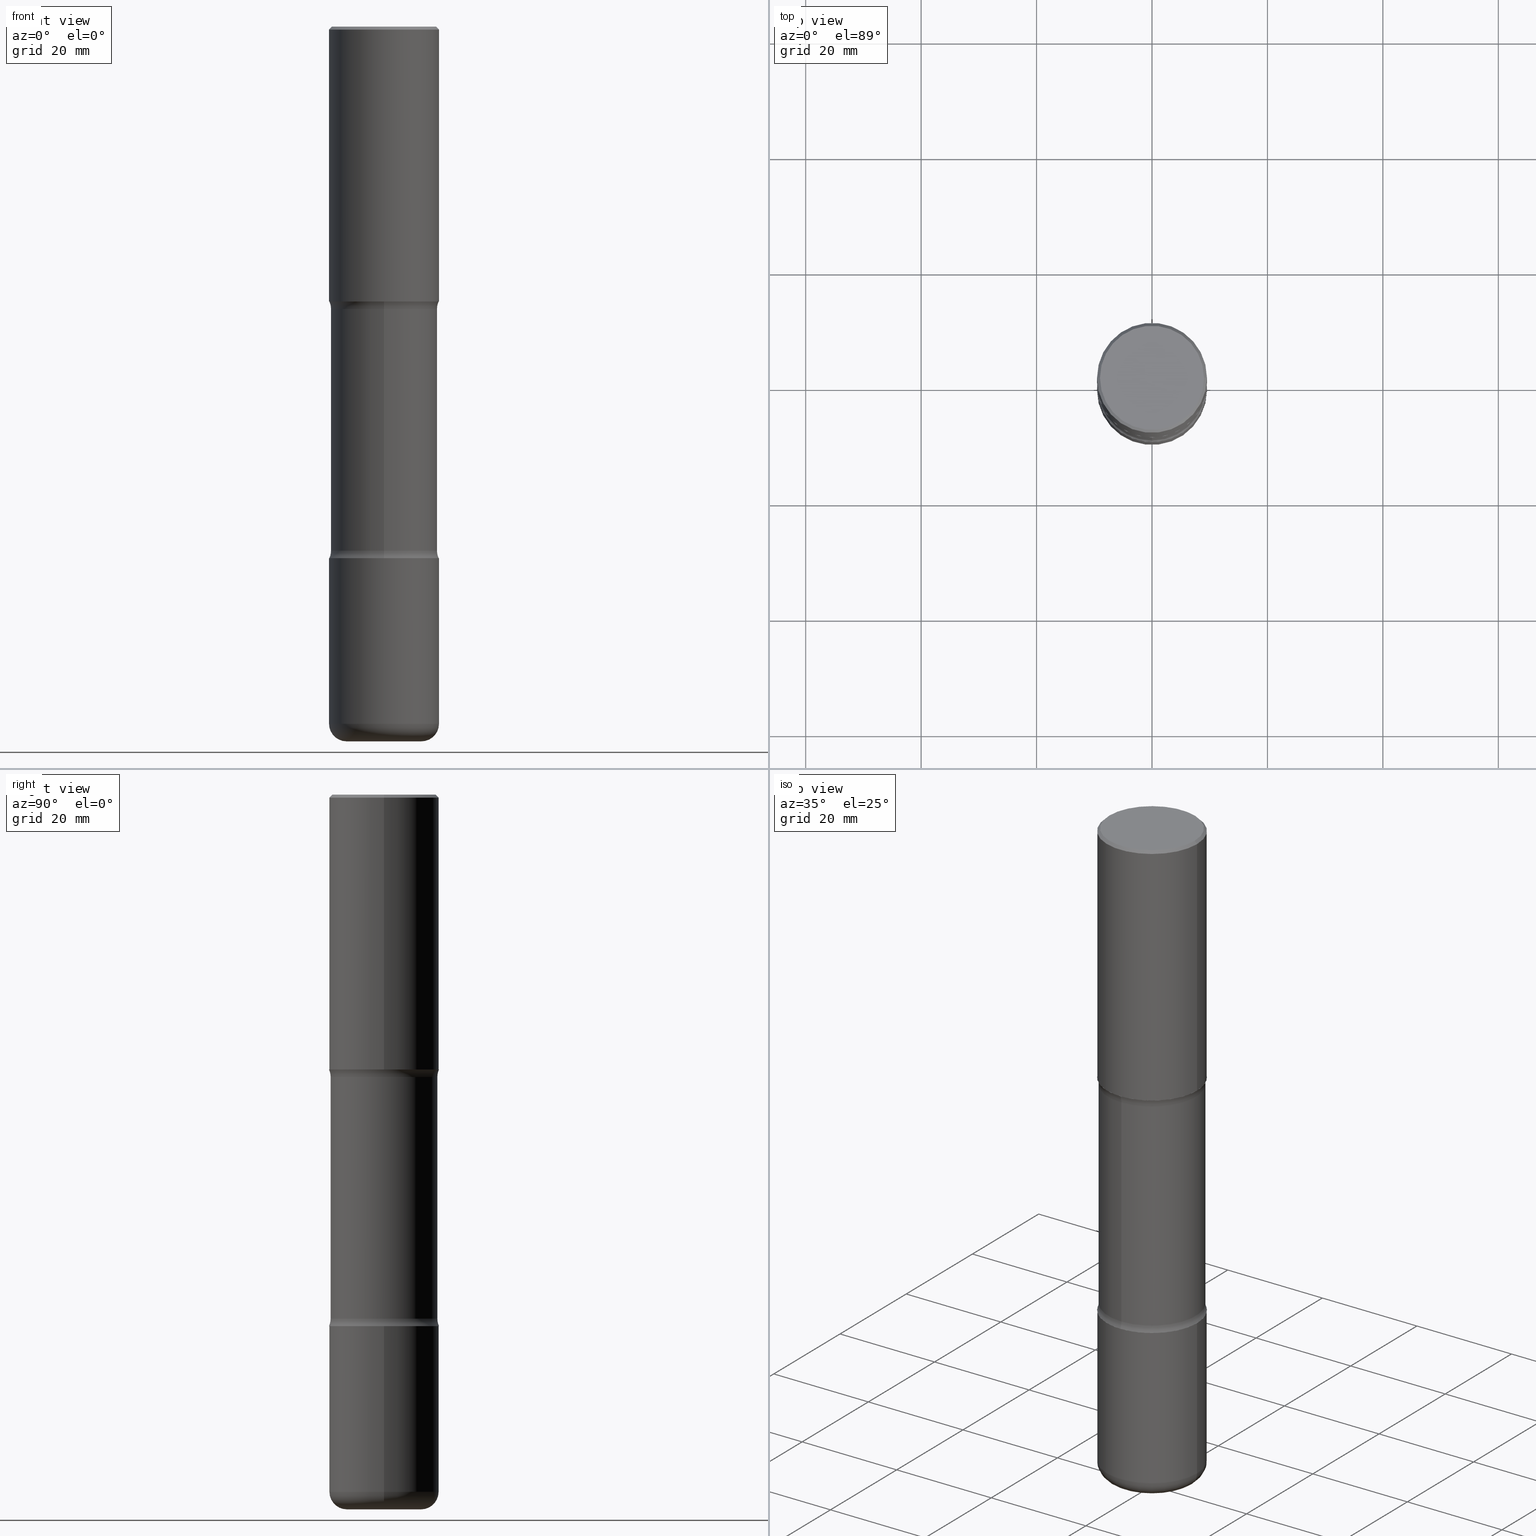
[diagram: canonical four-view strip — front | top / right | iso, engineering-drawing reading convention]
A machine part, canonical four-view strip (front | top / right | iso — engineering-drawing reading convention). The complete STEP part file that produces these views, byte-faithful:
ISO-10303-21;
HEADER;
FILE_DESCRIPTION (( 'STEP AP203' ),
    '1' );
FILE_NAME ('34007.STEP',
    '2024-03-01T22:53:26',
    ( '' ),
    ( '' ),
    'SwSTEP 2.0',
    'SolidWorks 2023',
    '' );
FILE_SCHEMA (( 'CONFIG_CONTROL_DESIGN' ));
ENDSEC;

DATA;
#1 = ORIENTED_EDGE ( 'NONE', *, *, #447, .F. ) ;
#2 = LINE ( 'NONE', #296, #242 ) ;
#3 = AXIS2_PLACEMENT_3D ( 'NONE', #24, #367, #473 ) ;
#4 = CARTESIAN_POINT ( 'NONE',  ( -2.572686749164237167E-15, -0.3750000000000128786, -3.624999999999999112 ) ) ;
#5 = DIRECTION ( 'NONE',  ( -2.445468806185136597E-29, 3.491481338843145583E-15, 1.000000000000000000 ) ) ;
#6 = DIRECTION ( 'NONE',  ( 1.000000000000000000, -6.982962677686266711E-15, 4.876231632511983138E-29 ) ) ;
#7 = VERTEX_POINT ( 'NONE', #38 ) ;
#8 =( LENGTH_UNIT ( ) NAMED_UNIT ( * ) SI_UNIT ( $, .METRE. ) );
#9 = PERSON_AND_ORGANIZATION_ROLE ( 'design_owner' ) ;
#10 = AXIS2_PLACEMENT_3D ( 'NONE', #319, #103, #356 ) ;
#11 = PLANE ( 'NONE',  #480 ) ;
#12 = PERSON_AND_ORGANIZATION ( #533, #261 ) ;
#13 = DIRECTION ( 'NONE',  ( -2.445468806185136597E-29, 3.491481338843145583E-15, 1.000000000000000000 ) ) ;
#14 = CIRCLE ( 'NONE', #184, 0.1199999999999999539 ) ;
#15 = ADVANCED_FACE ( 'NONE', ( #179 ), #383, .T. ) ;
#16 = CARTESIAN_POINT ( 'NONE',  ( 8.864824422421121284E-29, -1.265661985330640417E-14, -3.625000000000000444 ) ) ;
#17 = APPROVAL_DATE_TIME ( #458, #535 ) ;
#18 = CARTESIAN_POINT ( 'NONE',  ( 8.864824422421121284E-29, -1.265661985330640417E-14, -3.625000000000000444 ) ) ;
#19 = ORIENTED_EDGE ( 'NONE', *, *, #519, .T. ) ;
#20 = PERSON_AND_ORGANIZATION ( #533, #261 ) ;
#21 = SECURITY_CLASSIFICATION ( '', '', #108 ) ;
#22 = FACE_OUTER_BOUND ( 'NONE', #558, .T. ) ;
#23 = EDGE_LOOP ( 'NONE', ( #113, #255 ) ) ;
#24 = CARTESIAN_POINT ( 'NONE',  ( 1.162820417341032685E-28, -1.660199376619916000E-14, -4.755000000000000782 ) ) ;
#25 = ORIENTED_EDGE ( 'NONE', *, *, #133, .T. ) ;
#26 = AXIS2_PLACEMENT_3D ( 'NONE', #496, #64, #52 ) ;
#27 = MANIFOLD_SOLID_BREP ( 'Body-Move/Copy2[2]', #304 ) ;
#28 = CARTESIAN_POINT ( 'NONE',  ( 0.000000000000000000, 0.000000000000000000, 0.000000000000000000 ) ) ;
#29 = AXIS2_PLACEMENT_3D ( 'NONE', #477, #5, #430 ) ;
#30 = FACE_OUTER_BOUND ( 'NONE', #466, .T. ) ;
#31 = CARTESIAN_POINT ( 'NONE',  ( 3.414668749388672001E-15, 0.4889999999999876112, -3.573726225026824466 ) ) ;
#32 = MANIFOLD_SOLID_BREP ( 'Body-Move/Copy2[4]', #92 ) ;
#33 = EDGE_CURVE ( 'NONE', #107, #288, #521, .T. ) ;
#34 = DIRECTION ( 'NONE',  ( -1.000000000000000000, 6.982962677686266711E-15, 0.000000000000000000 ) ) ;
#35 = AXIS2_PLACEMENT_3D ( 'NONE', #28, #452, #245 ) ;
#36 = ORIENTED_EDGE ( 'NONE', *, *, #74, .T. ) ;
#37 = CARTESIAN_POINT ( 'NONE',  ( 1.196935141160471570E-28, -1.695267532701872981E-14, -4.875000000000000000 ) ) ;
#38 = CARTESIAN_POINT ( 'NONE',  ( -2.572686749164284893E-15, -0.3750000000000073830, -1.874999999999998668 ) ) ;
#39 = APPROVAL_PERSON_ORGANIZATION ( #481, #272, #439 ) ;
#40 = FACE_OUTER_BOUND ( 'NONE', #346, .T. ) ;
#41 = CARTESIAN_POINT ( 'NONE',  ( -2.534954010176537181E-15, -0.3640000000000067626, -1.926273774973176645 ) ) ;
#42 = VERTEX_POINT ( 'NONE', #428 ) ;
#43 = CARTESIAN_POINT ( 'NONE',  ( 4.585254011597131119E-29, -6.546527510330898707E-15, -1.875000000000000000 ) ) ;
#44 = VERTEX_POINT ( 'NONE', #307 ) ;
#45 = FACE_OUTER_BOUND ( 'NONE', #246, .T. ) ;
#46 = EDGE_CURVE ( 'NONE', #200, #453, #379, .T. ) ;
#47 = PRODUCT_DEFINITION_SHAPE ( 'NONE', 'NONE',  #350 ) ;
#48 = ADVANCED_FACE ( 'NONE', ( #210 ), #417, .F. ) ;
#49 = DIRECTION ( 'NONE',  ( -6.982962677686264344E-15, -1.000000000000000000, 0.000000000000000000 ) ) ;
#50 = AXIS2_PLACEMENT_3D ( 'NONE', #167, #287, #253 ) ;
#51 = EDGE_CURVE ( 'NONE', #44, #376, #482, .T. ) ;
#52 = DIRECTION ( 'NONE',  ( 6.982962677686265922E-15, 1.000000000000000000, -3.436844378969860121E-15 ) ) ;
#53 = AXIS2_PLACEMENT_3D ( 'NONE', #221, #380, #176 ) ;
#54 = CARTESIAN_POINT ( 'NONE',  ( 0.3750000000000004996, -2.642516375941190790E-15, -0.02000000000000013572 ) ) ;
#55 = ADVANCED_FACE ( 'NONE', ( #258 ), #301, .T. ) ;
#56 = CARTESIAN_POINT ( 'NONE',  ( 8.864824422421121284E-29, -1.265661985330640417E-14, -3.625000000000000444 ) ) ;
#57 = CIRCLE ( 'NONE', #131, 0.3639999999999999902 ) ;
#58 = DIRECTION ( 'NONE',  ( -2.445468806185136597E-29, 3.491481338843145583E-15, 1.000000000000000000 ) ) ;
#59 = ORIENTED_EDGE ( 'NONE', *, *, #352, .F. ) ;
#60 = DIRECTION ( 'NONE',  ( 1.000000000000000000, -6.982962677686263555E-15, 0.000000000000000000 ) ) ;
#61 = EDGE_LOOP ( 'NONE', ( #405, #548, #154, #66 ) ) ;
#62 = CIRCLE ( 'NONE', #471, 0.1250000000000001110 ) ;
#63 = AXIS2_PLACEMENT_3D ( 'NONE', #82, #474, #262 ) ;
#64 = DIRECTION ( 'NONE',  ( 2.483621591346876038E-29, -3.436844378969860121E-15, -1.000000000000000000 ) ) ;
#65 = CARTESIAN_POINT ( 'NONE',  ( 2.541798414677888268E-15, 0.3639999999999875002, -3.573726225026824022 ) ) ;
#66 = ORIENTED_EDGE ( 'NONE', *, *, #415, .F. ) ;
#67 = EDGE_CURVE ( 'NONE', #180, #288, #2, .T. ) ;
#68 = PERSON_AND_ORGANIZATION_ROLE ( 'design_supplier' ) ;
#69 = CARTESIAN_POINT ( 'NONE',  ( 0.2550000000000008926, -1.880162700967033970E-14, -4.875000000000000000 ) ) ;
#70 = ORIENTED_EDGE ( 'NONE', *, *, #316, .T. ) ;
#71 = CC_DESIGN_DATE_AND_TIME_ASSIGNMENT ( #400, #195, ( #21 ) ) ;
#72 = DIRECTION ( 'NONE',  ( 2.483621591346876038E-29, -3.436844378969860121E-15, -1.000000000000000000 ) ) ;
#73 = DIRECTION ( 'NONE',  ( -0.7071067811865475727, 2.468850131082257455E-15, -0.7071067811865474617 ) ) ;
#74 = EDGE_CURVE ( 'NONE', #365, #42, #164, .T. ) ;
#75 = CARTESIAN_POINT ( 'NONE',  ( 4.585254011597131119E-29, -6.546527510330898707E-15, -1.875000000000000000 ) ) ;
#76 = DIRECTION ( 'NONE',  ( -2.445468806185136597E-29, 3.491481338843145583E-15, 1.000000000000000000 ) ) ;
#77 = ORIENTED_EDGE ( 'NONE', *, *, #74, .F. ) ;
#78 = DIRECTION ( 'NONE',  ( 1.000000000000000000, -6.982962677686266711E-15, 0.000000000000000000 ) ) ;
#79 = CIRCLE ( 'NONE', #343, 0.3750000000000008327 ) ;
#80 = ORIENTED_EDGE ( 'NONE', *, *, #557, .F. ) ;
#81 = CARTESIAN_POINT ( 'NONE',  ( 3.131554243005659264E-46, -4.471029511141341874E-32, -1.280553747030123384E-17 ) ) ;
#82 = CARTESIAN_POINT ( 'NONE',  ( 4.890937612370306439E-31, -6.982962677686338448E-17, -0.02000000000000013572 ) ) ;
#83 = CC_DESIGN_APPROVAL ( #272, ( #350 ) ) ;
#84 = CARTESIAN_POINT ( 'NONE',  ( 4.645831292157334029E-29, -6.818362175414279204E-15, -1.926273774973178199 ) ) ;
#85 = EDGE_LOOP ( 'NONE', ( #305, #544 ) ) ;
#86 = CIRCLE ( 'NONE', #446, 0.3750000000000007772 ) ;
#87 = DIRECTION ( 'NONE',  ( -1.000000000000000000, 6.982962677686265922E-15, -4.883557194083112340E-29 ) ) ;
#88 = ORIENTED_EDGE ( 'NONE', *, *, #198, .T. ) ;
#89 = EDGE_CURVE ( 'NONE', #295, #107, #337, .T. ) ;
#90 = PRODUCT ( '34007', '34007', '', ( #232 ) ) ;
#91 = CIRCLE ( 'NONE', #378, 0.3550000000000003708 ) ;
#92 = CLOSED_SHELL ( 'NONE', ( #530, #539, #327, #182, #48, #220, #467, #122 ) ) ;
#93 = PLANE ( 'NONE',  #125 ) ;
#94 = DIMENSIONAL_EXPONENTS ( 1.000000000000000000, 0.000000000000000000, 0.000000000000000000, 0.000000000000000000, 0.000000000000000000, 0.000000000000000000, 0.000000000000000000 ) ;
#95 = ORIENTED_EDGE ( 'NONE', *, *, #46, .F. ) ;
#96 = CARTESIAN_POINT ( 'NONE',  ( 0.000000000000000000, 0.000000000000000000, 0.000000000000000000 ) ) ;
#97 = CIRCLE ( 'NONE', #555, 0.3639999999999999347 ) ;
#98 = VERTEX_POINT ( 'NONE', #124 ) ;
#99 = CARTESIAN_POINT ( 'NONE',  ( -0.3550000000000003708, 2.513866563967058619E-15, -1.280553747031869201E-17 ) ) ;
#100 = DIRECTION ( 'NONE',  ( 1.000000000000000000, -6.982962677686269077E-15, 0.000000000000000000 ) ) ;
#101 = ORIENTED_EDGE ( 'NONE', *, *, #554, .F. ) ;
#102 = DATE_TIME_ROLE ( 'creation_date' ) ;
#103 = DIRECTION ( 'NONE',  ( -2.483621591346875758E-29, 3.436844378969860121E-15, 1.000000000000000000 ) ) ;
#104 = ORIENTED_EDGE ( 'NONE', *, *, #198, .F. ) ;
#105 = AXIS2_PLACEMENT_3D ( 'NONE', #284, #239, #489 ) ;
#106 = DIRECTION ( 'NONE',  ( -2.445468806185136597E-29, 3.491481338843145583E-15, 1.000000000000000000 ) ) ;
#107 = VERTEX_POINT ( 'NONE', #464 ) ;
#108 = SECURITY_CLASSIFICATION_LEVEL ( 'unclassified' ) ;
#109 = UNCERTAINTY_MEASURE_WITH_UNIT (LENGTH_MEASURE( 1.000000000000000082E-05 ), #522, 'distance_accuracy_value', 'NONE');
#110 = EDGE_CURVE ( 'NONE', #393, #494, #348, .T. ) ;
#111 = DIRECTION ( 'NONE',  ( 2.483621591346876038E-29, -3.436844378969860121E-15, -1.000000000000000000 ) ) ;
#112 = DIRECTION ( 'NONE',  ( 2.483621591346876318E-29, -3.436844378969860121E-15, -1.000000000000000000 ) ) ;
#113 = ORIENTED_EDGE ( 'NONE', *, *, #322, .F. ) ;
#114 = COORDINATED_UNIVERSAL_TIME_OFFSET ( 5, 0, .BEHIND. ) ;
#115 = AXIS2_PLACEMENT_3D ( 'NONE', #497, #72, #427 ) ;
#116 = CARTESIAN_POINT ( 'NONE',  ( -2.497221271188717288E-15, -0.3640000000000169211, -4.874999999999999112 ) ) ;
#117 = ORIENTED_EDGE ( 'NONE', *, *, #51, .F. ) ;
#118 = CC_DESIGN_DATE_AND_TIME_ASSIGNMENT ( #119, #102, ( #350 ) ) ;
#119 = DATE_AND_TIME ( #491, #172 ) ;
#120 = LINE ( 'NONE', #290, #374 ) ;
#121 = CARTESIAN_POINT ( 'NONE',  ( -0.3750000000000004996, 2.548781377355490268E-15, -0.02000000000000013572 ) ) ;
#122 = ADVANCED_FACE ( 'NONE', ( #40 ), #553, .T. ) ;
#123 = CARTESIAN_POINT ( 'NONE',  ( 1.162820417341032685E-28, -1.660199376619916000E-14, -4.755000000000000782 ) ) ;
#124 = CARTESIAN_POINT ( 'NONE',  ( 0.3750000000000002220, -1.527523085743875418E-14, -3.625000000000000444 ) ) ;
#125 = AXIS2_PLACEMENT_3D ( 'NONE', #532, #306, #476 ) ;
#126 = ORIENTED_EDGE ( 'NONE', *, *, #352, .T. ) ;
#127 = VECTOR ( 'NONE', #333, 39.37007874015748143 ) ;
#128 = CARTESIAN_POINT ( 'NONE',  ( 0.000000000000000000, 0.000000000000000000, 0.000000000000000000 ) ) ;
#129 = ORIENTED_EDGE ( 'NONE', *, *, #426, .T. ) ;
#130 = CARTESIAN_POINT ( 'NONE',  ( 0.2550000000000008926, -1.838264924900916306E-14, -4.755000000000000782 ) ) ;
#131 = AXIS2_PLACEMENT_3D ( 'NONE', #551, #222, #371 ) ;
#132 = ORIENTED_EDGE ( 'NONE', *, *, #228, .T. ) ;
#133 = EDGE_CURVE ( 'NONE', #288, #107, #436, .T. ) ;
#134 = LINE ( 'NONE', #303, #399 ) ;
#135 = EDGE_LOOP ( 'NONE', ( #173, #147 ) ) ;
#136 = AXIS2_PLACEMENT_3D ( 'NONE', #96, #524, #355 ) ;
#137 = AXIS2_PLACEMENT_3D ( 'NONE', #299, #468, #291 ) ;
#138 = ADVANCED_FACE ( 'NONE', ( #422 ), #252, .T. ) ;
#139 = ORIENTED_EDGE ( 'NONE', *, *, #519, .F. ) ;
#140 = TOROIDAL_SURFACE ( 'NONE', #390, 0.4890000000000001568, 0.1250000000000001110 ) ;
#141 = ADVANCED_FACE ( 'NONE', ( #377 ), #275, .T. ) ;
#142 = CARTESIAN_POINT ( 'NONE',  ( 3.414668749388631769E-15, 0.4889999999999933844, -1.926273774973180197 ) ) ;
#143 = AXIS2_PLACEMENT_3D ( 'NONE', #392, #309, #273 ) ;
#144 = EDGE_LOOP ( 'NONE', ( #297, #129, #487, #162 ) ) ;
#145 = AXIS2_PLACEMENT_3D ( 'NONE', #37, #254, #169 ) ;
#146 = FACE_OUTER_BOUND ( 'NONE', #61, .T. ) ;
#147 = ORIENTED_EDGE ( 'NONE', *, *, #311, .T. ) ;
#148 = SHAPE_DEFINITION_REPRESENTATION ( #47, #504 ) ;
#149 = DIRECTION ( 'NONE',  ( 1.000000000000000000, -6.982962677686265922E-15, 4.876176775795936353E-29 ) ) ;
#150 = EDGE_LOOP ( 'NONE', ( #132, #361 ) ) ;
#151 = EDGE_CURVE ( 'NONE', #42, #376, #454, .T. ) ;
#152 = CALENDAR_DATE ( 2024, 1, 3 ) ;
#153 = CARTESIAN_POINT ( 'NONE',  ( 0.3750000000000009437, -1.922060477033151633E-14, -4.755000000000000782 ) ) ;
#154 = ORIENTED_EDGE ( 'NONE', *, *, #277, .T. ) ;
#155 = EDGE_CURVE ( 'NONE', #523, #402, #433, .T. ) ;
#156 = AXIS2_PLACEMENT_3D ( 'NONE', #18, #111, #196 ) ;
#157 = CARTESIAN_POINT ( 'NONE',  ( 4.518486637564087307E-29, -6.642142190109148265E-15, -1.875000000000000000 ) ) ;
#158 = EDGE_LOOP ( 'NONE', ( #325, #538 ) ) ;
#159 = DATE_AND_TIME ( #152, #330 ) ;
#160 = EDGE_CURVE ( 'NONE', #329, #200, #478, .T. ) ;
#161 = CARTESIAN_POINT ( 'NONE',  ( 2.541798414677846852E-15, 0.3639999999999931068, -1.926273774973179531 ) ) ;
#162 = ORIENTED_EDGE ( 'NONE', *, *, #492, .F. ) ;
#163 = CALENDAR_DATE ( 2024, 1, 3 ) ;
#164 = CIRCLE ( 'NONE', #137, 0.1250000000000000278 ) ;
#165 = DIRECTION ( 'NONE',  ( 1.000000000000000000, -6.982962677686265922E-15, 4.876176775795935793E-29 ) ) ;
#166 = EDGE_CURVE ( 'NONE', #523, #107, #516, .T. ) ;
#167 = CARTESIAN_POINT ( 'NONE',  ( 8.864824422421121284E-29, -1.265661985330640417E-14, -3.625000000000000444 ) ) ;
#168 = CIRCLE ( 'NONE', #191, 0.2550000000000008926 ) ;
#169 = DIRECTION ( 'NONE',  ( 6.982962677686265922E-15, 1.000000000000000000, -3.002030762268421058E-15 ) ) ;
#170 = DIRECTION ( 'NONE',  ( -2.445468806185136877E-29, 3.491481338843145188E-15, 1.000000000000000000 ) ) ;
#171 = PRODUCT_RELATED_PRODUCT_CATEGORY ( 'detail', '', ( #90 ) ) ;
#172 = LOCAL_TIME ( 17, 53, 26.00000000000000000, #443 ) ;
#173 = ORIENTED_EDGE ( 'NONE', *, *, #554, .T. ) ;
#174 = DIRECTION ( 'NONE',  ( -1.000000000000000000, 6.982962677686265922E-15, -4.883557194083112340E-29 ) ) ;
#175 = ADVANCED_FACE ( 'NONE', ( #408 ), #364, .F. ) ;
#176 = DIRECTION ( 'NONE',  ( 1.000000000000000000, -6.982962677686265922E-15, 4.876176775795936353E-29 ) ) ;
#177 = DIRECTION ( 'NONE',  ( 2.483621591346876038E-29, -3.436844378969860121E-15, -1.000000000000000000 ) ) ;
#178 = CIRCLE ( 'NONE', #308, 0.3750000000000007772 ) ;
#179 = FACE_OUTER_BOUND ( 'NONE', #386, .T. ) ;
#180 = VERTEX_POINT ( 'NONE', #189 ) ;
#181 = AXIS2_PLACEMENT_3D ( 'NONE', #31, #174, #218 ) ;
#182 = ADVANCED_FACE ( 'NONE', ( #22 ), #256, .F. ) ;
#183 = LENGTH_MEASURE_WITH_UNIT ( LENGTH_MEASURE( 0.02539999999999999897 ), #8 );
#184 = AXIS2_PLACEMENT_3D ( 'NONE', #233, #244, #398 ) ;
#185 = DIRECTION ( 'NONE',  ( 0.7071067811865475727, -7.319954787623256045E-15, -0.7071067811865474617 ) ) ;
#186 = DIRECTION ( 'NONE',  ( 6.982962677686266711E-15, 1.000000000000000000, -2.913971193241879189E-15 ) ) ;
#187 = APPLICATION_CONTEXT ( 'configuration controlled 3d designs of mechanical parts and assemblies' ) ;
#188 = CIRCLE ( 'NONE', #450, 0.3750000000000009992 ) ;
#189 = CARTESIAN_POINT ( 'NONE',  ( 0.3750000000000007772, -9.165138514463255034E-15, -1.875000000000000000 ) ) ;
#190 = ORIENTED_EDGE ( 'NONE', *, *, #432, .T. ) ;
#191 = AXIS2_PLACEMENT_3D ( 'NONE', #444, #58, #237 ) ;
#192 = DIRECTION ( 'NONE',  ( -2.445468806185136877E-29, 3.491481338843145188E-15, 1.000000000000000000 ) ) ;
#193 = ORIENTED_EDGE ( 'NONE', *, *, #110, .T. ) ;
#194 = CC_DESIGN_PERSON_AND_ORGANIZATION_ASSIGNMENT ( #289, #549, ( #21 ) ) ;
#195 = DATE_TIME_ROLE ( 'classification_date' ) ;
#196 = DIRECTION ( 'NONE',  ( 6.982962677686266711E-15, 1.000000000000000000, -2.913971193241879189E-15 ) ) ;
#197 = ORIENTED_EDGE ( 'NONE', *, *, #160, .F. ) ;
#198 = EDGE_CURVE ( 'NONE', #180, #295, #178, .T. ) ;
#199 = DIRECTION ( 'NONE',  ( 2.483621591346876038E-29, -3.436844378969860121E-15, -1.000000000000000000 ) ) ;
#200 = VERTEX_POINT ( 'NONE', #153 ) ;
#201 = CALENDAR_DATE ( 2024, 1, 3 ) ;
#202 = AXIS2_PLACEMENT_3D ( 'NONE', #56, #360, #493 ) ;
#203 = CARTESIAN_POINT ( 'NONE',  ( 2.618611004132400109E-15, 0.3749999999999942268, -1.875000000000001554 ) ) ;
#204 = EDGE_LOOP ( 'NONE', ( #104, #421 ) ) ;
#205 = DIRECTION ( 'NONE',  ( 1.000000000000000000, -6.982962677686266711E-15, 0.000000000000000000 ) ) ;
#206 = PRODUCT_DEFINITION_FORMATION_WITH_SPECIFIED_SOURCE ( 'ANY', '', #90, .NOT_KNOWN. ) ;
#207 = CLOSED_SHELL ( 'NONE', ( #15, #138, #510, #389, #257, #175 ) ) ;
#208 = DIRECTION ( 'NONE',  ( 2.483621591346876318E-29, -3.436844378969860121E-15, -1.000000000000000000 ) ) ;
#209 = CARTESIAN_POINT ( 'NONE',  ( 4.645831292157334029E-29, -6.818362175414279204E-15, -1.926273774973178199 ) ) ;
#210 = FACE_OUTER_BOUND ( 'NONE', #23, .T. ) ;
#211 = CC_DESIGN_PERSON_AND_ORGANIZATION_ASSIGNMENT ( #499, #68, ( #206 ) ) ;
#212 = EDGE_LOOP ( 'NONE', ( #462, #498, #223, #264 ) ) ;
#213 = CARTESIAN_POINT ( 'NONE',  ( -0.3750000000000006661, 2.664535259100380430E-15, -1.844600658845592961E-29 ) ) ;
#214 = EDGE_CURVE ( 'NONE', #494, #7, #321, .T. ) ;
#215 = AXIS2_PLACEMENT_3D ( 'NONE', #387, #227, #437 ) ;
#216 = ORIENTED_EDGE ( 'NONE', *, *, #155, .F. ) ;
#217 = AXIS2_PLACEMENT_3D ( 'NONE', #560, #341, #34 ) ;
#218 = DIRECTION ( 'NONE',  ( -6.982962677686269077E-15, -1.000000000000000000, 0.000000000000000000 ) ) ;
#219 = MANIFOLD_SOLID_BREP ( 'Body-Move/Copy2[1]', #207 ) ;
#220 = ADVANCED_FACE ( 'NONE', ( #230 ), #448, .F. ) ;
#221 = CARTESIAN_POINT ( 'NONE',  ( 0.000000000000000000, 0.000000000000000000, 0.000000000000000000 ) ) ;
#222 = DIRECTION ( 'NONE',  ( 2.483621591346876038E-29, -3.436844378969860121E-15, -1.000000000000000000 ) ) ;
#223 = ORIENTED_EDGE ( 'NONE', *, *, #67, .T. ) ;
#224 = CYLINDRICAL_SURFACE ( 'NONE', #143, 0.3639999999999999902 ) ;
#225 = ORIENTED_EDGE ( 'NONE', *, *, #475, .F. ) ;
#226 = AXIS2_PLACEMENT_3D ( 'NONE', #43, #328, #165 ) ;
#227 = DIRECTION ( 'NONE',  ( 2.483621591346876038E-29, -3.436844378969860121E-15, -1.000000000000000000 ) ) ;
#228 = EDGE_CURVE ( 'NONE', #98, #282, #513, .T. ) ;
#229 = COORDINATED_UNIVERSAL_TIME_OFFSET ( 5, 0, .BEHIND. ) ;
#230 = FACE_OUTER_BOUND ( 'NONE', #135, .T. ) ;
#231 = APPROVAL_PERSON_ORGANIZATION ( #20, #535, #276 ) ;
#232 = MECHANICAL_CONTEXT ( 'NONE', #187, 'mechanical' ) ;
#233 = CARTESIAN_POINT ( 'NONE',  ( -0.2550000000000008926, -1.479010979001089582E-14, -4.755000000000000782 ) ) ;
#234 = CIRCLE ( 'NONE', #366, 0.2550000000000008926 ) ;
#235 = PERSON_AND_ORGANIZATION_ROLE ( 'creator' ) ;
#236 = ADVANCED_FACE ( 'NONE', ( #323 ), #335, .T. ) ;
#237 = DIRECTION ( 'NONE',  ( 1.000000000000000000, -6.982962677686266711E-15, 0.000000000000000000 ) ) ;
#238 = ORIENTED_EDGE ( 'NONE', *, *, #294, .T. ) ;
#239 = DIRECTION ( 'NONE',  ( 1.000000000000000000, -6.860497997771530774E-15, 4.841467989404382820E-29 ) ) ;
#240 = ORIENTED_EDGE ( 'NONE', *, *, #406, .T. ) ;
#241 = VECTOR ( 'NONE', #185, 39.37007874015748143 ) ;
#242 = VECTOR ( 'NONE', #170, 39.37007874015748143 ) ;
#243 = CALENDAR_DATE ( 2024, 1, 3 ) ;
#244 = DIRECTION ( 'NONE',  ( 7.105427357601001859E-15, 1.000000000000000000, -3.491481338843145583E-15 ) ) ;
#245 = DIRECTION ( 'NONE',  ( 1.000000000000000000, -6.982962677686265922E-15, 4.876176775795936353E-29 ) ) ;
#246 = EDGE_LOOP ( 'NONE', ( #490, #36, #342, #117 ) ) ;
#247 = APPLICATION_CONTEXT ( 'configuration controlled 3d designs of mechanical parts and assemblies' ) ;
#248 = FACE_OUTER_BOUND ( 'NONE', #212, .T. ) ;
#249 = ORIENTED_EDGE ( 'NONE', *, *, #214, .T. ) ;
#250 = DIRECTION ( 'NONE',  ( -2.445468806185136597E-29, 3.491481338843145583E-15, 1.000000000000000000 ) ) ;
#251 = DIRECTION ( 'NONE',  ( 2.483621591346875758E-29, -3.436844378969860121E-15, -1.000000000000000000 ) ) ;
#252 = TOROIDAL_SURFACE ( 'NONE', #312, 0.2550000000000008926, 0.1199999999999999539 ) ;
#253 = DIRECTION ( 'NONE',  ( 1.000000000000000000, -6.982962677686263555E-15, 0.000000000000000000 ) ) ;
#254 = DIRECTION ( 'NONE',  ( 2.483621591346876038E-29, -3.436844378969860121E-15, -1.000000000000000000 ) ) ;
#255 = ORIENTED_EDGE ( 'NONE', *, *, #316, .F. ) ;
#256 = TOROIDAL_SURFACE ( 'NONE', #26, 0.4890000000000001568, 0.1250000000000001110 ) ;
#257 = ADVANCED_FACE ( 'NONE', ( #146 ), #315, .T. ) ;
#258 = FACE_OUTER_BOUND ( 'NONE', #501, .T. ) ;
#259 = VERTEX_POINT ( 'NONE', #274 ) ;
#260 = DIRECTION ( 'NONE',  ( -2.445468806185136597E-29, 3.491481338843145583E-15, 1.000000000000000000 ) ) ;
#261 = ORGANIZATION ( 'UNSPECIFIED', 'UNSPECIFIED', '' ) ;
#262 = DIRECTION ( 'NONE',  ( 1.000000000000000000, -6.982962677686266711E-15, 0.000000000000000000 ) ) ;
#263 = DIRECTION ( 'NONE',  ( 2.483621591346876038E-29, -3.436844378969860121E-15, -1.000000000000000000 ) ) ;
#264 = ORIENTED_EDGE ( 'NONE', *, *, #33, .F. ) ;
#265 = FACE_OUTER_BOUND ( 'NONE', #85, .T. ) ;
#266 = APPLICATION_PROTOCOL_DEFINITION ( 'international standard', 'config_control_design', 1994, #187 ) ;
#267 = CC_DESIGN_PERSON_AND_ORGANIZATION_ASSIGNMENT ( #542, #283, ( #206 ) ) ;
#268 = APPROVAL_STATUS ( 'not_yet_approved' ) ;
#269 = EDGE_CURVE ( 'NONE', #259, #453, #14, .T. ) ;
#270 = AXIS2_PLACEMENT_3D ( 'NONE', #16, #106, #60 ) ;
#271 = FACE_OUTER_BOUND ( 'NONE', #340, .T. ) ;
#272 = APPROVAL ( #268, 'UNSPECIFIED' ) ;
#273 = DIRECTION ( 'NONE',  ( 6.982962677686265922E-15, 1.000000000000000000, -3.002030762268421058E-15 ) ) ;
#274 = CARTESIAN_POINT ( 'NONE',  ( -0.2550000000000008926, -1.457327302888542523E-14, -4.875000000000000000 ) ) ;
#275 = CONICAL_SURFACE ( 'NONE', #217, 0.3750000000000004996, 0.7853981633974483900 ) ;
#276 = APPROVAL_ROLE ( '' ) ;
#277 = EDGE_CURVE ( 'NONE', #200, #98, #486, .T. ) ;
#278 = CARTESIAN_POINT ( 'NONE',  ( 0.3750000000000004996, -2.642516375941190790E-15, -0.02000000000000013572 ) ) ;
#279 = EDGE_LOOP ( 'NONE', ( #80, #216, #541, #349 ) ) ;
#280 = VECTOR ( 'NONE', #73, 39.37007874015748143 ) ;
#281 = DIRECTION ( 'NONE',  ( -2.445468806185136597E-29, 3.491481338843145583E-15, 1.000000000000000000 ) ) ;
#282 = VERTEX_POINT ( 'NONE', #537 ) ;
#283 = PERSON_AND_ORGANIZATION_ROLE ( 'creator' ) ;
#284 = CARTESIAN_POINT ( 'NONE',  ( -3.354783520910233281E-15, -0.4890000000000069291, -1.926273774973177089 ) ) ;
#285 = CARTESIAN_POINT ( 'NONE',  ( 4.662951447417221643E-29, -6.793845138663400459E-15, -1.926273774973178643 ) ) ;
#286 = ORIENTED_EDGE ( 'NONE', *, *, #166, .F. ) ;
#287 = DIRECTION ( 'NONE',  ( -2.445468806185136597E-29, 3.491481338843145583E-15, 1.000000000000000000 ) ) ;
#288 = VERTEX_POINT ( 'NONE', #278 ) ;
#289 = PERSON_AND_ORGANIZATION ( #533, #261 ) ;
#290 = CARTESIAN_POINT ( 'NONE',  ( -0.3750000000000006661, 2.664535259100380430E-15, -1.844600658845592961E-29 ) ) ;
#291 = DIRECTION ( 'NONE',  ( 6.860497997771532351E-15, 1.000000000000000000, 0.000000000000000000 ) ) ;
#292 = DIRECTION ( 'NONE',  ( -2.445468806185136597E-29, 3.491481338843145583E-15, 1.000000000000000000 ) ) ;
#293 = CARTESIAN_POINT ( 'NONE',  ( 4.890937612370306439E-31, -6.982962677686338448E-17, -0.02000000000000013572 ) ) ;
#294 = EDGE_CURVE ( 'NONE', #329, #259, #168, .T. ) ;
#295 = VERTEX_POINT ( 'NONE', #401 ) ;
#296 = CARTESIAN_POINT ( 'NONE',  ( 0.3750000000000006661, -2.618611004132354355E-15, 1.828566290923479285E-29 ) ) ;
#297 = ORIENTED_EDGE ( 'NONE', *, *, #269, .F. ) ;
#298 = CIRCLE ( 'NONE', #50, 0.3750000000000002220 ) ;
#299 = CARTESIAN_POINT ( 'NONE',  ( -3.354783520910191866E-15, -0.4890000000000125913, -3.573726225026821357 ) ) ;
#300 = ORIENTED_EDGE ( 'NONE', *, *, #277, .F. ) ;
#301 = CYLINDRICAL_SURFACE ( 'NONE', #472, 0.3750000000000006661 ) ;
#302 = LOCAL_TIME ( 17, 53, 26.00000000000000000, #229 ) ;
#303 = CARTESIAN_POINT ( 'NONE',  ( 2.541798414677920611E-15, 0.3639999999999830593, -4.875000000000001776 ) ) ;
#304 = CLOSED_SHELL ( 'NONE', ( #55, #236, #141, #515, #413, #372 ) ) ;
#305 = ORIENTED_EDGE ( 'NONE', *, *, #294, .F. ) ;
#306 = DIRECTION ( 'NONE',  ( 2.438088387897960049E-29, -3.491481338843145188E-15, -1.000000000000000000 ) ) ;
#307 = CARTESIAN_POINT ( 'NONE',  ( 2.618611004132439947E-15, 0.3749999999999875100, -3.625000000000001332 ) ) ;
#308 = AXIS2_PLACEMENT_3D ( 'NONE', #534, #13, #100 ) ;
#309 = DIRECTION ( 'NONE',  ( 2.483621591346876038E-29, -3.436844378969860121E-15, -1.000000000000000000 ) ) ;
#310 = CC_DESIGN_APPROVAL ( #535, ( #21 ) ) ;
#311 = EDGE_CURVE ( 'NONE', #365, #44, #495, .T. ) ;
#312 = AXIS2_PLACEMENT_3D ( 'NONE', #419, #260, #508 ) ;
#313 = CC_DESIGN_PERSON_AND_ORGANIZATION_ASSIGNMENT ( #12, #9, ( #90 ) ) ;
#314 = CARTESIAN_POINT ( 'NONE',  ( 8.864824422421121284E-29, -1.265661985330640417E-14, -3.625000000000000444 ) ) ;
#315 = CYLINDRICAL_SURFACE ( 'NONE', #420, 0.3750000000000006661 ) ;
#316 = EDGE_CURVE ( 'NONE', #7, #357, #79, .T. ) ;
#317 = CARTESIAN_POINT ( 'NONE',  ( 0.3750000000000006661, -2.618611004132354355E-15, 1.828566290923479285E-29 ) ) ;
#318 = ORIENTED_EDGE ( 'NONE', *, *, #67, .F. ) ;
#319 = CARTESIAN_POINT ( 'NONE',  ( 8.864824422421121284E-29, -1.265661985330640417E-14, -3.625000000000000444 ) ) ;
#320 = ORIENTED_EDGE ( 'NONE', *, *, #406, .F. ) ;
#321 = CIRCLE ( 'NONE', #105, 0.1250000000000001110 ) ;
#322 = EDGE_CURVE ( 'NONE', #357, #7, #484, .T. ) ;
#323 = FACE_OUTER_BOUND ( 'NONE', #483, .T. ) ;
#324 = DIRECTION ( 'NONE',  ( -2.445468806185136877E-29, 3.491481338843145188E-15, 1.000000000000000000 ) ) ;
#325 = ORIENTED_EDGE ( 'NONE', *, *, #155, .T. ) ;
#326 = APPROVAL_ROLE ( '' ) ;
#327 = ADVANCED_FACE ( 'NONE', ( #30 ), #140, .F. ) ;
#328 = DIRECTION ( 'NONE',  ( -2.438088387897960049E-29, 3.491481338843145188E-15, 1.000000000000000000 ) ) ;
#329 = VERTEX_POINT ( 'NONE', #69 ) ;
#330 = LOCAL_TIME ( 17, 53, 26.00000000000000000, #502 ) ;
#331 = DATE_AND_TIME ( #243, #302 ) ;
#332 = FACE_OUTER_BOUND ( 'NONE', #204, .T. ) ;
#333 = DIRECTION ( 'NONE',  ( -2.445468806185136877E-29, 3.491481338843145188E-15, 1.000000000000000000 ) ) ;
#334 = APPROVAL ( #536, 'UNSPECIFIED' ) ;
#335 = CONICAL_SURFACE ( 'NONE', #411, 0.3750000000000004996, 0.7853981633974483900 ) ;
#336 = CARTESIAN_POINT ( 'NONE',  ( 3.131554243005659264E-46, -4.471029511141341874E-32, -1.280553747030123384E-17 ) ) ;
#337 = LINE ( 'NONE', #213, #127 ) ;
#338 = EDGE_CURVE ( 'NONE', #295, #180, #86, .T. ) ;
#339 = DIRECTION ( 'NONE',  ( 2.483621591346876038E-29, -3.436844378969860121E-15, -1.000000000000000000 ) ) ;
#340 = EDGE_LOOP ( 'NONE', ( #193, #126, #1, #320 ) ) ;
#341 = DIRECTION ( 'NONE',  ( 2.445468806185136597E-29, -3.491481338843145583E-15, -1.000000000000000000 ) ) ;
#342 = ORIENTED_EDGE ( 'NONE', *, *, #151, .T. ) ;
#343 = AXIS2_PLACEMENT_3D ( 'NONE', #540, #199, #543 ) ;
#344 = CARTESIAN_POINT ( 'NONE',  ( 4.585254011597131119E-29, -6.546527510330898707E-15, -1.875000000000000000 ) ) ;
#345 = DIRECTION ( 'NONE',  ( 1.000000000000000000, -6.982962677686269077E-15, 0.000000000000000000 ) ) ;
#346 = EDGE_LOOP ( 'NONE', ( #59, #190, #240, #531 ) ) ;
#347 = APPLICATION_PROTOCOL_DEFINITION ( 'international standard', 'config_control_design', 1994, #247 ) ;
#348 = CIRCLE ( 'NONE', #488, 0.3639999999999999347 ) ;
#349 = ORIENTED_EDGE ( 'NONE', *, *, #33, .T. ) ;
#350 = PRODUCT_DEFINITION ( 'UNKNOWN', '', #206, #384 ) ;
#351 = AXIS2_PLACEMENT_3D ( 'NONE', #130, #424, #381 ) ;
#352 = EDGE_CURVE ( 'NONE', #494, #42, #429, .T. ) ;
#353 = APPROVAL_PERSON_ORGANIZATION ( #369, #334, #326 ) ;
#354 = ORIENTED_EDGE ( 'NONE', *, *, #557, .T. ) ;
#355 = DIRECTION ( 'NONE',  ( 1.000000000000000000, 0.000000000000000000, 0.000000000000000000 ) ) ;
#356 = DIRECTION ( 'NONE',  ( -6.982962677686265922E-15, -1.000000000000000000, 3.436844378969860121E-15 ) ) ;
#357 = VERTEX_POINT ( 'NONE', #203 ) ;
#358 = DIRECTION ( 'NONE',  ( 2.445468806185136597E-29, -3.491481338843145583E-15, -1.000000000000000000 ) ) ;
#359 = ORIENTED_EDGE ( 'NONE', *, *, #133, .F. ) ;
#360 = DIRECTION ( 'NONE',  ( 2.438088387897960049E-29, -3.491481338843145188E-15, -1.000000000000000000 ) ) ;
#361 = ORIENTED_EDGE ( 'NONE', *, *, #415, .T. ) ;
#362 = CC_DESIGN_PERSON_AND_ORGANIZATION_ASSIGNMENT ( #412, #235, ( #350 ) ) ;
#363 = APPROVAL_DATE_TIME ( #159, #334 ) ;
#364 = PLANE ( 'NONE',  #202 ) ;
#365 = VERTEX_POINT ( 'NONE', #4 ) ;
#366 = AXIS2_PLACEMENT_3D ( 'NONE', #456, #503, #205 ) ;
#367 = DIRECTION ( 'NONE',  ( -2.445468806185136597E-29, 3.491481338843145583E-15, 1.000000000000000000 ) ) ;
#368 = ORIENTED_EDGE ( 'NONE', *, *, #432, .F. ) ;
#369 = PERSON_AND_ORGANIZATION ( #533, #261 ) ;
#370 = DIRECTION ( 'NONE',  ( 6.982962677686265922E-15, 1.000000000000000000, -3.752538452835526915E-15 ) ) ;
#371 = DIRECTION ( 'NONE',  ( 6.982962677686265922E-15, 1.000000000000000000, -3.002030762268421058E-15 ) ) ;
#372 = ADVANCED_FACE ( 'NONE', ( #248 ), #409, .T. ) ;
#373 = DIRECTION ( 'NONE',  ( 6.982962677686265922E-15, 1.000000000000000000, -3.752538452835526915E-15 ) ) ;
#374 = VECTOR ( 'NONE', #324, 39.37007874015748143 ) ;
#375 = DIRECTION ( 'NONE',  ( 6.982962677686265922E-15, 1.000000000000000000, -3.436844378969860121E-15 ) ) ;
#376 = VERTEX_POINT ( 'NONE', #65 ) ;
#377 = FACE_OUTER_BOUND ( 'NONE', #279, .T. ) ;
#378 = AXIS2_PLACEMENT_3D ( 'NONE', #336, #250, #6 ) ;
#379 = CIRCLE ( 'NONE', #29, 0.3750000000000009992 ) ;
#380 = DIRECTION ( 'NONE',  ( -2.445468806185136597E-29, 3.491481338843145583E-15, 1.000000000000000000 ) ) ;
#381 = DIRECTION ( 'NONE',  ( 1.000000000000000000, -6.982962677686270655E-15, 0.000000000000000000 ) ) ;
#382 = DIRECTION ( 'NONE',  ( 6.982962677686265922E-15, 1.000000000000000000, -3.436844378969860121E-15 ) ) ;
#383 = CYLINDRICAL_SURFACE ( 'NONE', #53, 0.3750000000000006661 ) ;
#384 = DESIGN_CONTEXT ( 'detailed design', #247, 'design' ) ;
#385 = FACE_OUTER_BOUND ( 'NONE', #511, .T. ) ;
#386 = EDGE_LOOP ( 'NONE', ( #410, #514, #527, #300 ) ) ;
#387 = CARTESIAN_POINT ( 'NONE',  ( 8.739436005148859331E-29, -1.247759842481551240E-14, -3.573726225026822689 ) ) ;
#388 = ORIENTED_EDGE ( 'NONE', *, *, #447, .T. ) ;
#389 = ADVANCED_FACE ( 'NONE', ( #416 ), #465, .T. ) ;
#390 = AXIS2_PLACEMENT_3D ( 'NONE', #285, #263, #382 ) ;
#391 = ORIENTED_EDGE ( 'NONE', *, *, #214, .F. ) ;
#392 = CARTESIAN_POINT ( 'NONE',  ( 1.196935141160471570E-28, -1.695267532701872981E-14, -4.875000000000000000 ) ) ;
#393 = VERTEX_POINT ( 'NONE', #161 ) ;
#394 = DIRECTION ( 'NONE',  ( -1.000000000000000000, 6.982962677686265922E-15, -4.876176775795935793E-29 ) ) ;
#395 = CC_DESIGN_APPROVAL ( #334, ( #206 ) ) ;
#396 = DIRECTION ( 'NONE',  ( -1.000000000000000000, 6.982962677686266711E-15, 0.000000000000000000 ) ) ;
#397 =( NAMED_UNIT ( * ) PLANE_ANGLE_UNIT ( ) SI_UNIT ( $, .RADIAN. ) );
#398 = DIRECTION ( 'NONE',  ( -1.000000000000000000, 7.105427357600993970E-15, 0.000000000000000000 ) ) ;
#399 = VECTOR ( 'NONE', #208, 39.37007874015748143 ) ;
#400 = DATE_AND_TIME ( #201, #559 ) ;
#401 = CARTESIAN_POINT ( 'NONE',  ( -0.3750000000000007772, -6.436433094534978114E-16, -1.875000000000000000 ) ) ;
#402 = VERTEX_POINT ( 'NONE', #517 ) ;
#403 = CIRCLE ( 'NONE', #434, 0.3750000000000002220 ) ;
#404 = CARTESIAN_POINT ( 'NONE',  ( 0.000000000000000000, 0.000000000000000000, 0.000000000000000000 ) ) ;
#405 = ORIENTED_EDGE ( 'NONE', *, *, #463, .F. ) ;
#406 = EDGE_CURVE ( 'NONE', #393, #376, #134, .T. ) ;
#407 = APPROVAL_STATUS ( 'not_yet_approved' ) ;
#408 = FACE_OUTER_BOUND ( 'NONE', #150, .T. ) ;
#409 = CYLINDRICAL_SURFACE ( 'NONE', #35, 0.3750000000000006661 ) ;
#410 = ORIENTED_EDGE ( 'NONE', *, *, #46, .T. ) ;
#411 = AXIS2_PLACEMENT_3D ( 'NONE', #442, #358, #396 ) ;
#412 = PERSON_AND_ORGANIZATION ( #533, #261 ) ;
#413 = ADVANCED_FACE ( 'NONE', ( #332 ), #547, .F. ) ;
#414 = DIRECTION ( 'NONE',  ( 2.483621591346876038E-29, -3.436844378969860121E-15, -1.000000000000000000 ) ) ;
#415 = EDGE_CURVE ( 'NONE', #282, #98, #298, .T. ) ;
#416 = FACE_OUTER_BOUND ( 'NONE', #144, .T. ) ;
#417 = PLANE ( 'NONE',  #418 ) ;
#418 = AXIS2_PLACEMENT_3D ( 'NONE', #344, #251, #375 ) ;
#419 = CARTESIAN_POINT ( 'NONE',  ( 1.162820417341032685E-28, -1.660199376619916000E-14, -4.755000000000000782 ) ) ;
#420 = AXIS2_PLACEMENT_3D ( 'NONE', #404, #281, #149 ) ;
#421 = ORIENTED_EDGE ( 'NONE', *, *, #338, .F. ) ;
#422 = FACE_OUTER_BOUND ( 'NONE', #423, .T. ) ;
#423 = EDGE_LOOP ( 'NONE', ( #238, #449, #95, #197 ) ) ;
#424 = DIRECTION ( 'NONE',  ( -6.982962677686266711E-15, -1.000000000000000000, 3.491481338843145583E-15 ) ) ;
#425 = TOROIDAL_SURFACE ( 'NONE', #215, 0.4890000000000001013, 0.1250000000000000555 ) ;
#426 = EDGE_CURVE ( 'NONE', #259, #329, #234, .T. ) ;
#427 = DIRECTION ( 'NONE',  ( 6.982962677686265922E-15, 1.000000000000000000, -3.436844378969860121E-15 ) ) ;
#428 = CARTESIAN_POINT ( 'NONE',  ( -2.534954010176493005E-15, -0.3640000000000124802, -3.573726225026821801 ) ) ;
#429 = LINE ( 'NONE', #116, #525 ) ;
#430 = DIRECTION ( 'NONE',  ( 1.000000000000000000, -6.982962677686265133E-15, 0.000000000000000000 ) ) ;
#431 = DIRECTION ( 'NONE',  ( 2.438088387897960049E-29, -3.491481338843145188E-15, -1.000000000000000000 ) ) ;
#432 = EDGE_CURVE ( 'NONE', #494, #393, #97, .T. ) ;
#433 = CIRCLE ( 'NONE', #470, 0.3550000000000003708 ) ;
#434 = AXIS2_PLACEMENT_3D ( 'NONE', #314, #440, #186 ) ;
#435 = CARTESIAN_POINT ( 'NONE',  ( 1.192166043015254091E-28, -1.702097152686033664E-14, -4.875000000000000000 ) ) ;
#436 = CIRCLE ( 'NONE', #441, 0.3750000000000004996 ) ;
#437 = DIRECTION ( 'NONE',  ( 6.982962677686265922E-15, 1.000000000000000000, -3.436844378969860121E-15 ) ) ;
#438 = TOROIDAL_SURFACE ( 'NONE', #115, 0.4890000000000001013, 0.1250000000000000555 ) ;
#439 = APPROVAL_ROLE ( '' ) ;
#440 = DIRECTION ( 'NONE',  ( 2.483621591346876038E-29, -3.436844378969860121E-15, -1.000000000000000000 ) ) ;
#441 = AXIS2_PLACEMENT_3D ( 'NONE', #293, #76, #78 ) ;
#442 = CARTESIAN_POINT ( 'NONE',  ( 4.890937612370306439E-31, -6.982962677686338448E-17, -0.02000000000000013572 ) ) ;
#443 = COORDINATED_UNIVERSAL_TIME_OFFSET ( 5, 0, .BEHIND. ) ;
#444 = CARTESIAN_POINT ( 'NONE',  ( 1.192166043015254091E-28, -1.702097152686033664E-14, -4.875000000000000000 ) ) ;
#445 = ORIENTED_EDGE ( 'NONE', *, *, #51, .T. ) ;
#446 = AXIS2_PLACEMENT_3D ( 'NONE', #75, #500, #345 ) ;
#447 = EDGE_CURVE ( 'NONE', #376, #42, #57, .T. ) ;
#448 = PLANE ( 'NONE',  #10 ) ;
#449 = ORIENTED_EDGE ( 'NONE', *, *, #269, .T. ) ;
#450 = AXIS2_PLACEMENT_3D ( 'NONE', #123, #292, #460 ) ;
#451 = DIRECTION ( 'NONE',  ( 2.483621591346876038E-29, -3.436844378969860121E-15, -1.000000000000000000 ) ) ;
#452 = DIRECTION ( 'NONE',  ( -2.445468806185136597E-29, 3.491481338843145583E-15, 1.000000000000000000 ) ) ;
#453 = VERTEX_POINT ( 'NONE', #552 ) ;
#454 = CIRCLE ( 'NONE', #529, 0.3639999999999999902 ) ;
#455 = COORDINATED_UNIVERSAL_TIME_OFFSET ( 5, 0, .BEHIND. ) ;
#456 = CARTESIAN_POINT ( 'NONE',  ( 1.192166043015254091E-28, -1.702097152686033664E-14, -4.875000000000000000 ) ) ;
#457 = ORIENTED_EDGE ( 'NONE', *, *, #110, .F. ) ;
#458 = DATE_AND_TIME ( #163, #550 ) ;
#459 = DIRECTION ( 'NONE',  ( 1.000000000000000000, -6.982962677686266711E-15, 4.876231632511983138E-29 ) ) ;
#460 = DIRECTION ( 'NONE',  ( 1.000000000000000000, -6.982962677686265133E-15, 0.000000000000000000 ) ) ;
#461 = DIRECTION ( 'NONE',  ( -2.445468806185136597E-29, 3.491481338843145583E-15, 1.000000000000000000 ) ) ;
#462 = ORIENTED_EDGE ( 'NONE', *, *, #89, .F. ) ;
#463 = EDGE_CURVE ( 'NONE', #453, #282, #120, .T. ) ;
#464 = CARTESIAN_POINT ( 'NONE',  ( -0.3750000000000004996, 2.548781377355490268E-15, -0.02000000000000013572 ) ) ;
#465 = TOROIDAL_SURFACE ( 'NONE', #3, 0.2550000000000008926, 0.1199999999999999539 ) ;
#466 = EDGE_LOOP ( 'NONE', ( #368, #249, #70, #139 ) ) ;
#467 = ADVANCED_FACE ( 'NONE', ( #385 ), #438, .F. ) ;
#468 = DIRECTION ( 'NONE',  ( 1.000000000000000000, -6.860497997771530774E-15, 4.841467989404382820E-29 ) ) ;
#469 = ORIENTED_EDGE ( 'NONE', *, *, #322, .T. ) ;
#470 = AXIS2_PLACEMENT_3D ( 'NONE', #81, #509, #459 ) ;
#471 = AXIS2_PLACEMENT_3D ( 'NONE', #142, #87, #49 ) ;
#472 = AXIS2_PLACEMENT_3D ( 'NONE', #128, #461, #556 ) ;
#473 = DIRECTION ( 'NONE',  ( 1.000000000000000000, -6.982962677686267499E-15, 4.883557194083113462E-29 ) ) ;
#474 = DIRECTION ( 'NONE',  ( -2.445468806185136597E-29, 3.491481338843145583E-15, 1.000000000000000000 ) ) ;
#475 = EDGE_CURVE ( 'NONE', #402, #523, #91, .T. ) ;
#476 = DIRECTION ( 'NONE',  ( -1.000000000000000000, 6.982962677686265922E-15, -4.876176775795935793E-29 ) ) ;
#477 = CARTESIAN_POINT ( 'NONE',  ( 1.162820417341032685E-28, -1.660199376619916000E-14, -4.755000000000000782 ) ) ;
#478 = CIRCLE ( 'NONE', #351, 0.1199999999999999539 ) ;
#479 = LINE ( 'NONE', #54, #241 ) ;
#480 = AXIS2_PLACEMENT_3D ( 'NONE', #435, #431, #394 ) ;
#481 = PERSON_AND_ORGANIZATION ( #533, #261 ) ;
#482 = CIRCLE ( 'NONE', #181, 0.1250000000000000278 ) ;
#483 = EDGE_LOOP ( 'NONE', ( #225, #354, #25, #286 ) ) ;
#484 = CIRCLE ( 'NONE', #506, 0.3750000000000008327 ) ;
#485 =( NAMED_UNIT ( * ) SI_UNIT ( $, .STERADIAN. ) SOLID_ANGLE_UNIT ( ) );
#486 = LINE ( 'NONE', #317, #545 ) ;
#487 = ORIENTED_EDGE ( 'NONE', *, *, #160, .T. ) ;
#488 = AXIS2_PLACEMENT_3D ( 'NONE', #209, #177, #373 ) ;
#489 = DIRECTION ( 'NONE',  ( 6.860497997771531562E-15, 1.000000000000000000, 0.000000000000000000 ) ) ;
#490 = ORIENTED_EDGE ( 'NONE', *, *, #311, .F. ) ;
#491 = CALENDAR_DATE ( 2024, 1, 3 ) ;
#492 = EDGE_CURVE ( 'NONE', #453, #200, #188, .T. ) ;
#493 = DIRECTION ( 'NONE',  ( -1.000000000000000000, 6.982962677686265922E-15, -4.876176775795935793E-29 ) ) ;
#494 = VERTEX_POINT ( 'NONE', #41 ) ;
#495 = CIRCLE ( 'NONE', #156, 0.3750000000000002220 ) ;
#496 = CARTESIAN_POINT ( 'NONE',  ( 4.662951447417221643E-29, -6.793845138663400459E-15, -1.926273774973178643 ) ) ;
#497 = CARTESIAN_POINT ( 'NONE',  ( 8.739436005148859331E-29, -1.247759842481551240E-14, -3.573726225026822689 ) ) ;
#498 = ORIENTED_EDGE ( 'NONE', *, *, #338, .T. ) ;
#499 = PERSON_AND_ORGANIZATION ( #533, #261 ) ;
#500 = DIRECTION ( 'NONE',  ( -2.445468806185136597E-29, 3.491481338843145583E-15, 1.000000000000000000 ) ) ;
#501 = EDGE_LOOP ( 'NONE', ( #88, #518, #359, #318 ) ) ;
#502 = COORDINATED_UNIVERSAL_TIME_OFFSET ( 5, 0, .BEHIND. ) ;
#503 = DIRECTION ( 'NONE',  ( -2.445468806185136597E-29, 3.491481338843145583E-15, 1.000000000000000000 ) ) ;
#504 = ADVANCED_BREP_SHAPE_REPRESENTATION ( '34007', ( #219, #27, #32, #136 ), #528 ) ;
#505 = CARTESIAN_POINT ( 'NONE',  ( 8.737479767827876244E-29, -1.248039986800127244E-14, -3.573726225026822689 ) ) ;
#506 = AXIS2_PLACEMENT_3D ( 'NONE', #157, #451, #507 ) ;
#507 = DIRECTION ( 'NONE',  ( 6.982962677686266711E-15, 1.000000000000000000, -3.642463991552343069E-15 ) ) ;
#508 = DIRECTION ( 'NONE',  ( 1.000000000000000000, -6.982962677686267499E-15, 4.883557194083113462E-29 ) ) ;
#509 = DIRECTION ( 'NONE',  ( -2.445468806185136597E-29, 3.491481338843145583E-15, 1.000000000000000000 ) ) ;
#510 = ADVANCED_FACE ( 'NONE', ( #265 ), #11, .T. ) ;
#511 = EDGE_LOOP ( 'NONE', ( #77, #101, #445, #388 ) ) ;
#512 = DIRECTION ( 'NONE',  ( 6.982962677686265922E-15, 1.000000000000000000, -3.002030762268421058E-15 ) ) ;
#513 = CIRCLE ( 'NONE', #270, 0.3750000000000002220 ) ;
#514 = ORIENTED_EDGE ( 'NONE', *, *, #463, .T. ) ;
#515 = ADVANCED_FACE ( 'NONE', ( #526 ), #93, .F. ) ;
#516 = LINE ( 'NONE', #121, #280 ) ;
#517 = CARTESIAN_POINT ( 'NONE',  ( 0.3550000000000003708, -2.538996582575043809E-15, -1.280553747028368784E-17 ) ) ;
#518 = ORIENTED_EDGE ( 'NONE', *, *, #89, .T. ) ;
#519 = EDGE_CURVE ( 'NONE', #393, #357, #62, .T. ) ;
#520 = CC_DESIGN_SECURITY_CLASSIFICATION ( #21, ( #206 ) ) ;
#521 = CIRCLE ( 'NONE', #63, 0.3750000000000004996 ) ;
#522 =( CONVERSION_BASED_UNIT ( 'INCH', #183 ) LENGTH_UNIT ( ) NAMED_UNIT ( #94 ) );
#523 = VERTEX_POINT ( 'NONE', #99 ) ;
#524 = DIRECTION ( 'NONE',  ( 0.000000000000000000, 0.000000000000000000, 1.000000000000000000 ) ) ;
#525 = VECTOR ( 'NONE', #112, 39.37007874015748143 ) ;
#526 = FACE_OUTER_BOUND ( 'NONE', #158, .T. ) ;
#527 = ORIENTED_EDGE ( 'NONE', *, *, #228, .F. ) ;
#528 =( GEOMETRIC_REPRESENTATION_CONTEXT ( 3 ) GLOBAL_UNCERTAINTY_ASSIGNED_CONTEXT ( ( #109 ) ) GLOBAL_UNIT_ASSIGNED_CONTEXT ( ( #522, #397, #485 ) ) REPRESENTATION_CONTEXT ( 'NONE', 'WORKASPACE' ) );
#529 = AXIS2_PLACEMENT_3D ( 'NONE', #505, #339, #512 ) ;
#530 = ADVANCED_FACE ( 'NONE', ( #271 ), #224, .T. ) ;
#531 = ORIENTED_EDGE ( 'NONE', *, *, #151, .F. ) ;
#532 = CARTESIAN_POINT ( 'NONE',  ( 2.478951750578627364E-15, 0.3550000000000003708, -1.245878644024468661E-15 ) ) ;
#533 = PERSON ( 'UNSPECIFIED', 'UNSPECIFIED', 'UNSPECIFIED', ('UNSPECIFIED'), ('UNSPECIFIED'), ('UNSPECIFIED') ) ;
#534 = CARTESIAN_POINT ( 'NONE',  ( 4.585254011597131119E-29, -6.546527510330898707E-15, -1.875000000000000000 ) ) ;
#535 = APPROVAL ( #407, 'UNSPECIFIED' ) ;
#536 = APPROVAL_STATUS ( 'not_yet_approved' ) ;
#537 = CARTESIAN_POINT ( 'NONE',  ( -0.3750000000000002220, -1.196477155065240166E-14, -3.625000000000000444 ) ) ;
#538 = ORIENTED_EDGE ( 'NONE', *, *, #475, .T. ) ;
#539 = ADVANCED_FACE ( 'NONE', ( #45 ), #425, .F. ) ;
#540 = CARTESIAN_POINT ( 'NONE',  ( 4.518486637564087307E-29, -6.642142190109148265E-15, -1.875000000000000000 ) ) ;
#541 = ORIENTED_EDGE ( 'NONE', *, *, #166, .T. ) ;
#542 = PERSON_AND_ORGANIZATION ( #533, #261 ) ;
#543 = DIRECTION ( 'NONE',  ( 6.982962677686266711E-15, 1.000000000000000000, -3.642463991552343069E-15 ) ) ;
#544 = ORIENTED_EDGE ( 'NONE', *, *, #426, .F. ) ;
#545 = VECTOR ( 'NONE', #192, 39.37007874015748143 ) ;
#546 = APPROVAL_DATE_TIME ( #331, #272 ) ;
#547 = PLANE ( 'NONE',  #226 ) ;
#548 = ORIENTED_EDGE ( 'NONE', *, *, #492, .T. ) ;
#549 = PERSON_AND_ORGANIZATION_ROLE ( 'classification_officer' ) ;
#550 = LOCAL_TIME ( 17, 53, 26.00000000000000000, #114 ) ;
#551 = CARTESIAN_POINT ( 'NONE',  ( 8.737479767827876244E-29, -1.248039986800127244E-14, -3.573726225026822689 ) ) ;
#552 = CARTESIAN_POINT ( 'NONE',  ( -0.3750000000000009437, -1.393745850709877800E-14, -4.755000000000000782 ) ) ;
#553 = CYLINDRICAL_SURFACE ( 'NONE', #145, 0.3639999999999999902 ) ;
#554 = EDGE_CURVE ( 'NONE', #44, #365, #403, .T. ) ;
#555 = AXIS2_PLACEMENT_3D ( 'NONE', #84, #414, #370 ) ;
#556 = DIRECTION ( 'NONE',  ( 1.000000000000000000, -6.982962677686265922E-15, 4.876176775795936353E-29 ) ) ;
#557 = EDGE_CURVE ( 'NONE', #402, #288, #479, .T. ) ;
#558 = EDGE_LOOP ( 'NONE', ( #391, #457, #19, #469 ) ) ;
#559 = LOCAL_TIME ( 17, 53, 26.00000000000000000, #455 ) ;
#560 = CARTESIAN_POINT ( 'NONE',  ( 4.890937612370306439E-31, -6.982962677686338448E-17, -0.02000000000000013572 ) ) ;
ENDSEC;
END-ISO-10303-21;
